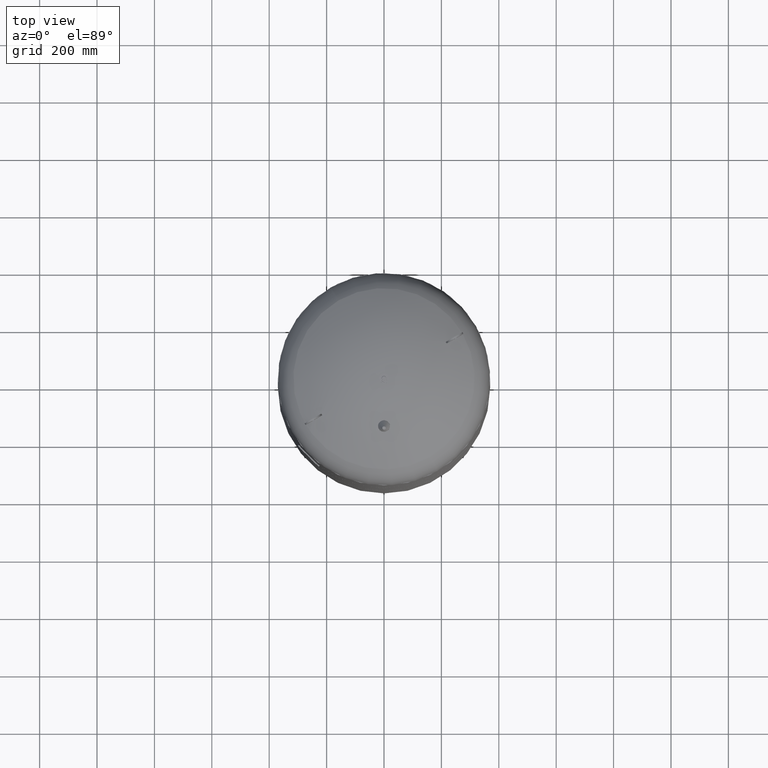
[diagram: clean part render]
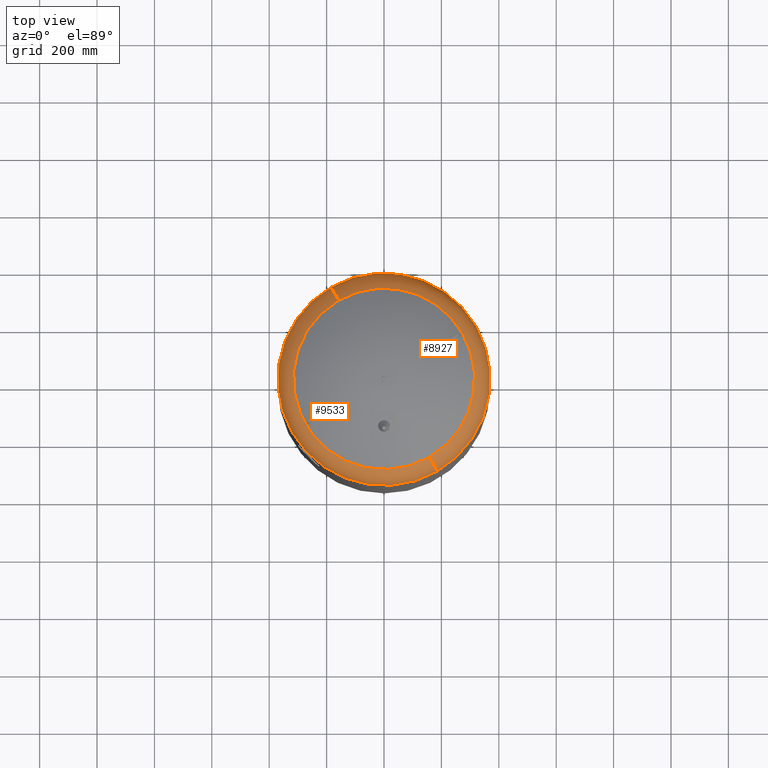
[diagram: same view with one multi-face feature highlighted, each face labeled with its STEP entity id]
A machine part, top view. The highlighted faces form ONE feature: a constant-radius fillet chain: 2 tangent blend faces with common blend radius 115.5 mm. The faces share edges in the B-rep.
Their STEP definitions:
[1] entity #8927 (Torus):
#8832=CARTESIAN_POINT('',(320.429399400242350,184.999999999999940,2106.206120388130300));
#8833=VERTEX_POINT('',#8832);
#8857=CARTESIAN_POINT('',(-184.999999999999970,320.429399400242350,2106.206120388130300));
#8858=VERTEX_POINT('',#8857);
#8866=CARTESIAN_POINT('',(-2.682575E-015,-4.159481E-014,2106.206120388130300));
#8867=DIRECTION('',(-1.060575E-016,-6.123234E-017,-1.000000000000000));
#8868=DIRECTION('',(0.866025403784439,0.500000000000000,-1.224647E-016));
#8869=AXIS2_PLACEMENT_3D('',#8866,#8867,#8868);
#8870=CIRCLE('',#8869,370.0);
#8871=EDGE_CURVE('',#8858,#8833,#8870,.T.);
#8876=CARTESIAN_POINT('',(-2.682575E-015,-4.159481E-014,2106.206120388130300));
#8877=DIRECTION('',(-1.420901E-017,-2.203186E-016,-1.0));
#8878=DIRECTION('',(0.500000000000000,-0.866025403784439,1.836970E-016));
#8879=AXIS2_PLACEMENT_3D('',#8876,#8877,#8878);
#8880=TOROIDAL_SURFACE('',#8879,254.500000000000030,115.500000000000000);
#8881=CARTESIAN_POINT('',(185.0,-320.429399400242400,2106.206120388130300));
#8882=VERTEX_POINT('',#8881);
#8883=CARTESIAN_POINT('',(157.965517241379270,-273.604301705966460,2204.014494274920300));
#8884=VERTEX_POINT('',#8883);
#8885=CARTESIAN_POINT('',(127.249999999999970,-220.403465263139680,2106.206120388130300));
#8886=DIRECTION('',(-0.866025403784439,-0.500000000000000,1.224647E-016));
#8887=DIRECTION('',(0.500000000000000,-0.866025403784439,0.0));
#8888=AXIS2_PLACEMENT_3D('',#8885,#8886,#8887);
#8889=CIRCLE('',#8888,115.499999999999990);
#8890=EDGE_CURVE('',#8882,#8884,#8889,.T.);
#8891=ORIENTED_EDGE('',*,*,#8890,.F.);
#8892=CARTESIAN_POINT('',(-2.682575E-015,-4.159481E-014,2106.206120388130300));
#8893=DIRECTION('',(-1.060575E-016,-6.123234E-017,-1.000000000000000));
#8894=DIRECTION('',(0.866025403784439,0.500000000000000,-1.224647E-016));
#8895=AXIS2_PLACEMENT_3D('',#8892,#8893,#8894);
#8896=CIRCLE('',#8895,370.0);
#8897=EDGE_CURVE('',#8833,#8882,#8896,.T.);
#8898=ORIENTED_EDGE('',*,*,#8897,.F.);
#8899=ORIENTED_EDGE('',*,*,#8871,.F.);
#8900=CARTESIAN_POINT('',(-157.965517241379250,273.604301705966410,2204.014494274920300));
#8901=VERTEX_POINT('',#8900);
#8902=CARTESIAN_POINT('',(-127.249999999999970,220.403465263139680,2106.206120388130300));
#8903=DIRECTION('',(0.866025403784439,0.500000000000000,-1.224647E-016));
#8904=DIRECTION('',(-0.500000000000000,0.866025403784439,0.0));
#8905=AXIS2_PLACEMENT_3D('',#8902,#8903,#8904);
#8906=CIRCLE('',#8905,115.500000000000010);
#8907=EDGE_CURVE('',#8858,#8901,#8906,.T.);
#8908=ORIENTED_EDGE('',*,*,#8907,.T.);
#8909=CARTESIAN_POINT('',(273.604301705966460,157.965517241379250,2204.014494274920300));
#8910=VERTEX_POINT('',#8909);
#8911=CARTESIAN_POINT('',(-1.292814E-015,-2.004580E-014,2204.014494274920300));
#8912=DIRECTION('',(-1.060575E-016,-6.123234E-017,-1.0));
#8913=DIRECTION('',(0.866025403784439,0.500000000000000,-1.224647E-016));
#8914=AXIS2_PLACEMENT_3D('',#8911,#8912,#8913);
#8915=CIRCLE('',#8914,315.931034482758610);
#8916=EDGE_CURVE('',#8901,#8910,#8915,.T.);
#8917=ORIENTED_EDGE('',*,*,#8916,.T.);
#8918=CARTESIAN_POINT('',(-1.292814E-015,-2.004580E-014,2204.014494274920300));
#8919=DIRECTION('',(-1.060575E-016,-6.123234E-017,-1.0));
#8920=DIRECTION('',(0.866025403784439,0.500000000000000,-1.224647E-016));
#8921=AXIS2_PLACEMENT_3D('',#8918,#8919,#8920);
#8922=CIRCLE('',#8921,315.931034482758610);
#8923=EDGE_CURVE('',#8910,#8884,#8922,.T.);
#8924=ORIENTED_EDGE('',*,*,#8923,.T.);
#8925=EDGE_LOOP('',(#8891,#8898,#8899,#8908,#8917,#8924));
#8926=FACE_OUTER_BOUND('',#8925,.T.);
#8927=ADVANCED_FACE('',(#8926),#8880,.T.);
[2] entity #9533 (Torus):
#8849=CARTESIAN_POINT('',(-320.429399400242350,-184.999999999999970,2106.206120388130300));
#8850=VERTEX_POINT('',#8849);
#8857=CARTESIAN_POINT('',(-184.999999999999970,320.429399400242350,2106.206120388130300));
#8858=VERTEX_POINT('',#8857);
#8859=CARTESIAN_POINT('',(-2.682575E-015,-4.159481E-014,2106.206120388130300));
#8860=DIRECTION('',(-1.060575E-016,-6.123234E-017,-1.000000000000000));
#8861=DIRECTION('',(0.866025403784439,0.500000000000000,-1.224647E-016));
#8862=AXIS2_PLACEMENT_3D('',#8859,#8860,#8861);
#8863=CIRCLE('',#8862,370.0);
#8864=EDGE_CURVE('',#8850,#8858,#8863,.T.);
#8881=CARTESIAN_POINT('',(185.0,-320.429399400242400,2106.206120388130300));
#8882=VERTEX_POINT('',#8881);
#8883=CARTESIAN_POINT('',(157.965517241379270,-273.604301705966460,2204.014494274920300));
#8884=VERTEX_POINT('',#8883);
#8885=CARTESIAN_POINT('',(127.249999999999970,-220.403465263139680,2106.206120388130300));
#8886=DIRECTION('',(-0.866025403784439,-0.500000000000000,1.224647E-016));
#8887=DIRECTION('',(0.500000000000000,-0.866025403784439,0.0));
#8888=AXIS2_PLACEMENT_3D('',#8885,#8886,#8887);
#8889=CIRCLE('',#8888,115.499999999999990);
#8890=EDGE_CURVE('',#8882,#8884,#8889,.T.);
#8900=CARTESIAN_POINT('',(-157.965517241379250,273.604301705966410,2204.014494274920300));
#8901=VERTEX_POINT('',#8900);
#8902=CARTESIAN_POINT('',(-127.249999999999970,220.403465263139680,2106.206120388130300));
#8903=DIRECTION('',(0.866025403784439,0.500000000000000,-1.224647E-016));
#8904=DIRECTION('',(-0.500000000000000,0.866025403784439,0.0));
#8905=AXIS2_PLACEMENT_3D('',#8902,#8903,#8904);
#8906=CIRCLE('',#8905,115.500000000000010);
#8907=EDGE_CURVE('',#8858,#8901,#8906,.T.);
#9505=CARTESIAN_POINT('',(-1.292814E-015,-2.004580E-014,2204.014494274920300));
#9506=DIRECTION('',(-1.060575E-016,-6.123234E-017,-1.0));
#9507=DIRECTION('',(0.866025403784439,0.500000000000000,-1.224647E-016));
#9508=AXIS2_PLACEMENT_3D('',#9505,#9506,#9507);
#9509=CIRCLE('',#9508,315.931034482758610);
#9510=EDGE_CURVE('',#8884,#8901,#9509,.T.);
#9515=CARTESIAN_POINT('',(-2.682575E-015,-4.159481E-014,2106.206120388130300));
#9516=DIRECTION('',(-1.420901E-017,-2.203186E-016,-1.0));
#9517=DIRECTION('',(0.500000000000000,-0.866025403784439,1.836970E-016));
#9518=AXIS2_PLACEMENT_3D('',#9515,#9516,#9517);
#9519=TOROIDAL_SURFACE('',#9518,254.500000000000030,115.500000000000000);
#9520=ORIENTED_EDGE('',*,*,#8890,.T.);
#9521=ORIENTED_EDGE('',*,*,#9510,.T.);
#9522=ORIENTED_EDGE('',*,*,#8907,.F.);
#9523=ORIENTED_EDGE('',*,*,#8864,.F.);
#9524=CARTESIAN_POINT('',(-2.682575E-015,-4.159481E-014,2106.206120388130300));
#9525=DIRECTION('',(-1.060575E-016,-6.123234E-017,-1.000000000000000));
#9526=DIRECTION('',(0.866025403784439,0.500000000000000,-1.224647E-016));
#9527=AXIS2_PLACEMENT_3D('',#9524,#9525,#9526);
#9528=CIRCLE('',#9527,370.0);
#9529=EDGE_CURVE('',#8882,#8850,#9528,.T.);
#9530=ORIENTED_EDGE('',*,*,#9529,.F.);
#9531=EDGE_LOOP('',(#9520,#9521,#9522,#9523,#9530));
#9532=FACE_OUTER_BOUND('',#9531,.T.);
#9533=ADVANCED_FACE('',(#9532),#9519,.T.);